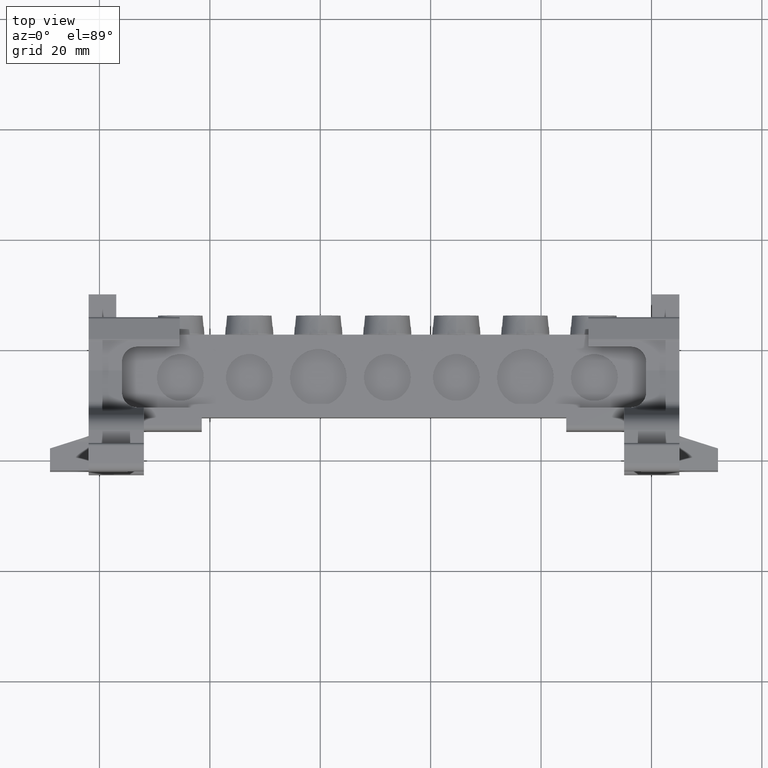
[diagram: clean part render]
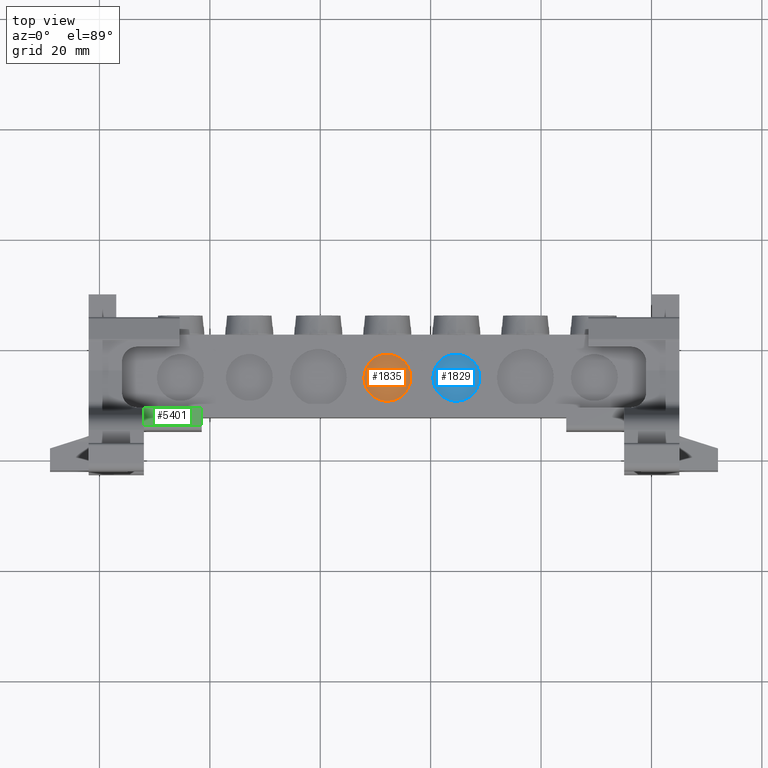
[diagram: same view with three faces highlighted in distinct colors, each labeled with its STEP entity id]
A machine part, top view with three faces highlighted in distinct colors.
Their STEP definitions:

[orange] entity #1835 — the highlighted planar face has unit normal (0, 0, 1).
#470 = AXIS2_PLACEMENT_3D ( 'NONE', #16954, #16961, #16976 ) ;
#1007 = CIRCLE ( 'NONE', #1008, 4.250000000000005300 ) ;
#1008 = AXIS2_PLACEMENT_3D ( 'NONE', #7520, #7512, #7521 ) ;
#1835 = ADVANCED_FACE ( 'NONE', ( #16967 ), #16984, .T. ) ;
#2276 = EDGE_CURVE ( 'NONE', #3282, #3335, #1007, .T. ) ;
#3282 = VERTEX_POINT ( 'NONE', #8621 ) ;
#3335 = VERTEX_POINT ( 'NONE', #8695 ) ;
#3933 = EDGE_LOOP ( 'NONE', ( #19127, #19167 ) ) ;
#7512 = DIRECTION ( 'NONE',  ( 0.0000000000000000000, 0.0000000000000000000, 1.000000000000000000 ) ) ;
#7520 = CARTESIAN_POINT ( 'NONE',  ( -7.852697695824403500, 54.61882648292838400, 42.57764998369307800 ) ) ;
#7521 = DIRECTION ( 'NONE',  ( 1.000000000000000000, 0.0000000000000000000, 0.0000000000000000000 ) ) ;
#8621 = CARTESIAN_POINT ( 'NONE',  ( -12.10269769582440900, 54.61882648292838400, 42.57764998369307800 ) ) ;
#8695 = CARTESIAN_POINT ( 'NONE',  ( -3.602697695824398100, 54.61882648292838400, 42.57764998369307800 ) ) ;
#13809 = DIRECTION ( 'NONE',  ( 0.0000000000000000000, 0.0000000000000000000, 1.000000000000000000 ) ) ;
#13819 = CARTESIAN_POINT ( 'NONE',  ( -7.852697695824403500, 54.61882648292838400, 42.57764998369307800 ) ) ;
#13825 = DIRECTION ( 'NONE',  ( 1.000000000000000000, 0.0000000000000000000, 0.0000000000000000000 ) ) ;
#16006 = EDGE_CURVE ( 'NONE', #3335, #3282, #19663, .T. ) ;
#16954 = CARTESIAN_POINT ( 'NONE',  ( -56.45269769582440500, 61.91882648292838800, 42.57764998369307800 ) ) ;
#16961 = DIRECTION ( 'NONE',  ( 0.0000000000000000000, 0.0000000000000000000, 1.000000000000000000 ) ) ;
#16967 = FACE_OUTER_BOUND ( 'NONE', #3933, .T. ) ;
#16976 = DIRECTION ( 'NONE',  ( 1.000000000000000000, 0.0000000000000000000, -0.0000000000000000000 ) ) ;
#16984 = PLANE ( 'NONE',  #470 ) ;
#19127 = ORIENTED_EDGE ( 'NONE', *, *, #16006, .T. ) ;
#19167 = ORIENTED_EDGE ( 'NONE', *, *, #2276, .T. ) ;
#19643 = AXIS2_PLACEMENT_3D ( 'NONE', #13819, #13809, #13825 ) ;
#19663 = CIRCLE ( 'NONE', #19643, 4.250000000000005300 ) ;

[blue] entity #1829 — the highlighted planar face has unit normal (0, 0, 1).
#458 = AXIS2_PLACEMENT_3D ( 'NONE', #16903, #16910, #16917 ) ;
#991 = AXIS2_PLACEMENT_3D ( 'NONE', #7510, #7518, #7502 ) ;
#1023 = CIRCLE ( 'NONE', #991, 4.250000000000005300 ) ;
#1829 = ADVANCED_FACE ( 'NONE', ( #16879 ), #16902, .T. ) ;
#2275 = EDGE_CURVE ( 'NONE', #3234, #3283, #1023, .T. ) ;
#3234 = VERTEX_POINT ( 'NONE', #8583 ) ;
#3283 = VERTEX_POINT ( 'NONE', #8641 ) ;
#3898 = EDGE_LOOP ( 'NONE', ( #19134, #19178 ) ) ;
#7502 = DIRECTION ( 'NONE',  ( 1.000000000000000000, 0.0000000000000000000, 0.0000000000000000000 ) ) ;
#7510 = CARTESIAN_POINT ( 'NONE',  ( 4.647302304175593000, 54.61882648292838400, 42.57764998369307800 ) ) ;
#7518 = DIRECTION ( 'NONE',  ( 0.0000000000000000000, 0.0000000000000000000, 1.000000000000000000 ) ) ;
#8583 = CARTESIAN_POINT ( 'NONE',  ( 0.3973023041755879300, 54.61882648292838400, 42.57764998369307800 ) ) ;
#8641 = CARTESIAN_POINT ( 'NONE',  ( 8.897302304175598300, 54.61882648292838400, 42.57764998369307800 ) ) ;
#13577 = CARTESIAN_POINT ( 'NONE',  ( 4.647302304175593000, 54.61882648292838400, 42.57764998369307800 ) ) ;
#13579 = DIRECTION ( 'NONE',  ( 1.000000000000000000, 0.0000000000000000000, 0.0000000000000000000 ) ) ;
#13602 = DIRECTION ( 'NONE',  ( 0.0000000000000000000, 0.0000000000000000000, 1.000000000000000000 ) ) ;
#15933 = EDGE_CURVE ( 'NONE', #3283, #3234, #17892, .T. ) ;
#16879 = FACE_OUTER_BOUND ( 'NONE', #3898, .T. ) ;
#16902 = PLANE ( 'NONE',  #458 ) ;
#16903 = CARTESIAN_POINT ( 'NONE',  ( -56.45269769582440500, 61.91882648292838800, 42.57764998369307800 ) ) ;
#16910 = DIRECTION ( 'NONE',  ( 0.0000000000000000000, 0.0000000000000000000, 1.000000000000000000 ) ) ;
#16917 = DIRECTION ( 'NONE',  ( 1.000000000000000000, 0.0000000000000000000, -0.0000000000000000000 ) ) ;
#17892 = CIRCLE ( 'NONE', #18034, 4.250000000000005300 ) ;
#18034 = AXIS2_PLACEMENT_3D ( 'NONE', #13577, #13602, #13579 ) ;
#19134 = ORIENTED_EDGE ( 'NONE', *, *, #15933, .T. ) ;
#19178 = ORIENTED_EDGE ( 'NONE', *, *, #2275, .T. ) ;

[green] entity #5401 — the highlighted planar face has unit normal (-0, 0, 1).
#714 = VECTOR ( 'NONE', #6270, 1000.000000000000000 ) ;
#715 = VECTOR ( 'NONE', #6257, 1000.000000000000000 ) ;
#2021 = EDGE_CURVE ( 'NONE', #3098, #2713, #6289, .T. ) ;
#2028 = EDGE_CURVE ( 'NONE', #2747, #3098, #6273, .T. ) ;
#2713 = VERTEX_POINT ( 'NONE', #7152 ) ;
#2747 = VERTEX_POINT ( 'NONE', #7199 ) ;
#2763 = VERTEX_POINT ( 'NONE', #7195 ) ;
#3098 = VERTEX_POINT ( 'NONE', #8470 ) ;
#5072 = EDGE_LOOP ( 'NONE', ( #15391, #15379, #15385, #15462 ) ) ;
#5401 = ADVANCED_FACE ( 'NONE', ( #9968 ), #9994, .T. ) ;
#6257 = DIRECTION ( 'NONE',  ( 1.586342518886890100E-014, 1.000000000000000000, -0.0000000000000000000 ) ) ;
#6259 = CARTESIAN_POINT ( 'NONE',  ( -41.46331934428491200, 76.09568998100090200, 45.11624998369211400 ) ) ;
#6270 = DIRECTION ( 'NONE',  ( -1.000000000000000000, 1.586342518886890100E-014, -0.0000000000000000000 ) ) ;
#6273 = LINE ( 'NONE', #6259, #715 ) ;
#6276 = CARTESIAN_POINT ( 'NONE',  ( -53.16069769582360000, 49.14653714227041100, 45.11624998369161000 ) ) ;
#6289 = LINE ( 'NONE', #6276, #714 ) ;
#7152 = CARTESIAN_POINT ( 'NONE',  ( -51.95269769582410600, 49.14653714227039000, 45.11624998369157400 ) ) ;
#7195 = CARTESIAN_POINT ( 'NONE',  ( -51.95269769582412800, 45.96882648293119900, 45.11624998369200100 ) ) ;
#7199 = CARTESIAN_POINT ( 'NONE',  ( -41.46331934428538800, 45.96882648293107100, 45.11624998369207900 ) ) ;
#8470 = CARTESIAN_POINT ( 'NONE',  ( -41.46331934428531700, 49.14653714227024000, 45.11624998369177300 ) ) ;
#9968 = FACE_OUTER_BOUND ( 'NONE', #5072, .T. ) ;
#9972 = DIRECTION ( 'NONE',  ( 0.0000000000000000000, -1.000000000000000000, 1.313518572567622100E-013 ) ) ;
#9994 = PLANE ( 'NONE',  #17616 ) ;
#10003 = CARTESIAN_POINT ( 'NONE',  ( 23.19338230417589800, 46.04835549248059600, 45.11624998369230600 ) ) ;
#10008 = DIRECTION ( 'NONE',  ( -4.241555170701995000E-015, 1.313518572567622100E-013, 1.000000000000000000 ) ) ;
#10216 = VECTOR ( 'NONE', #14578, 1000.000000000000000 ) ;
#13441 = DIRECTION ( 'NONE',  ( -7.897574987183881100E-015, -1.000000000000000000, 1.313518572567621900E-013 ) ) ;
#13462 = LINE ( 'NONE', #13468, #18443 ) ;
#13468 = CARTESIAN_POINT ( 'NONE',  ( -51.95269769582409200, 50.47768931561417800, 45.11624998369140400 ) ) ;
#14542 = LINE ( 'NONE', #14552, #10216 ) ;
#14552 = CARTESIAN_POINT ( 'NONE',  ( 23.19338230417589800, 45.96882648293119900, 45.11624998369232000 ) ) ;
#14578 = DIRECTION ( 'NONE',  ( 1.000000000000000000, 5.571361493287301000E-028, 4.241555170701995000E-015 ) ) ;
#15379 = ORIENTED_EDGE ( 'NONE', *, *, #2021, .T. ) ;
#15385 = ORIENTED_EDGE ( 'NONE', *, *, #15897, .T. ) ;
#15391 = ORIENTED_EDGE ( 'NONE', *, *, #2028, .T. ) ;
#15462 = ORIENTED_EDGE ( 'NONE', *, *, #16385, .T. ) ;
#15897 = EDGE_CURVE ( 'NONE', #2713, #2763, #13462, .T. ) ;
#16385 = EDGE_CURVE ( 'NONE', #2763, #2747, #14542, .T. ) ;
#17616 = AXIS2_PLACEMENT_3D ( 'NONE', #10003, #10008, #9972 ) ;
#18443 = VECTOR ( 'NONE', #13441, 1000.000000000000000 ) ;